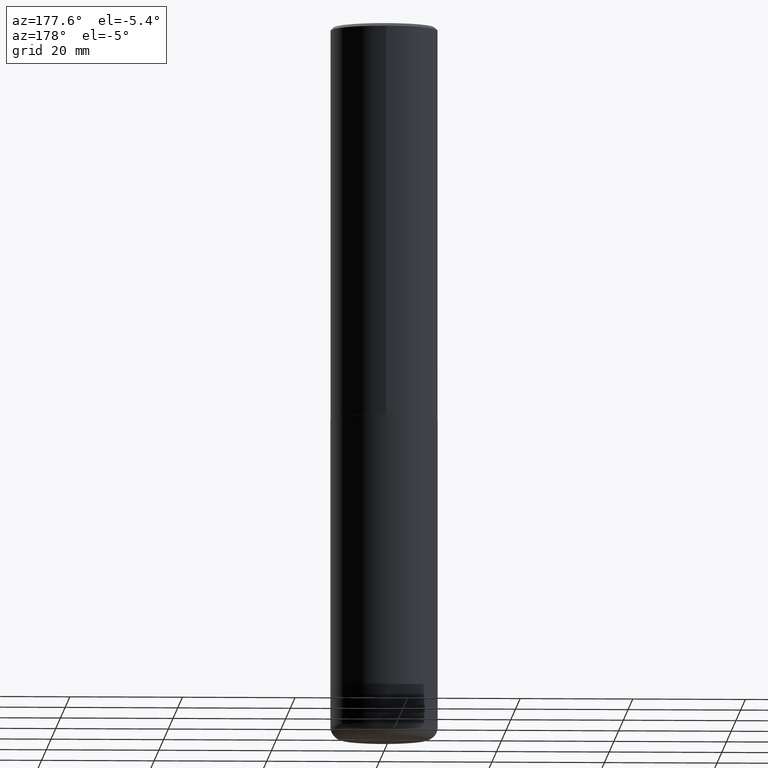
[diagram: clean part render]
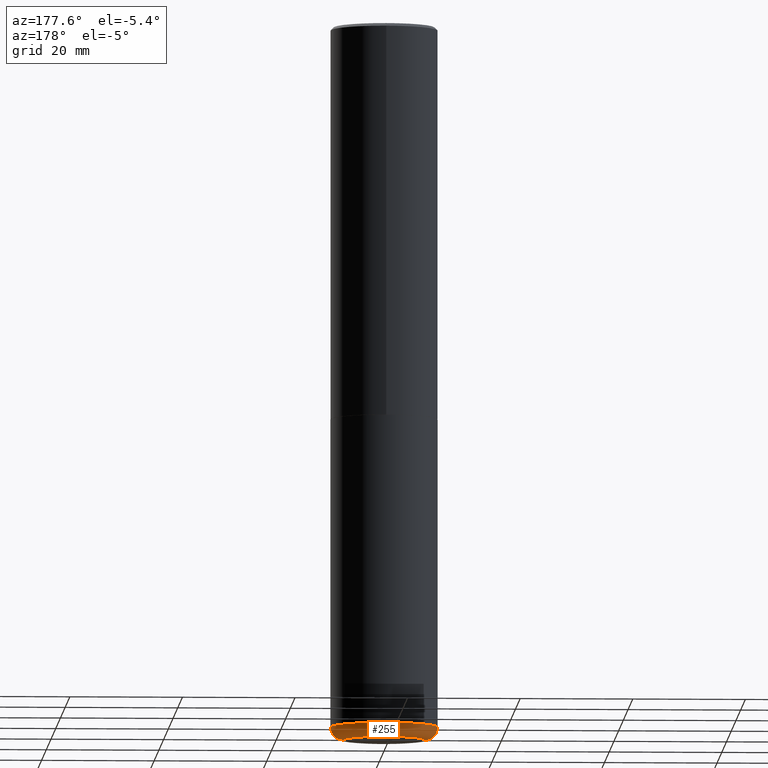
[diagram: same view with one face highlighted and labeled with its STEP entity id]
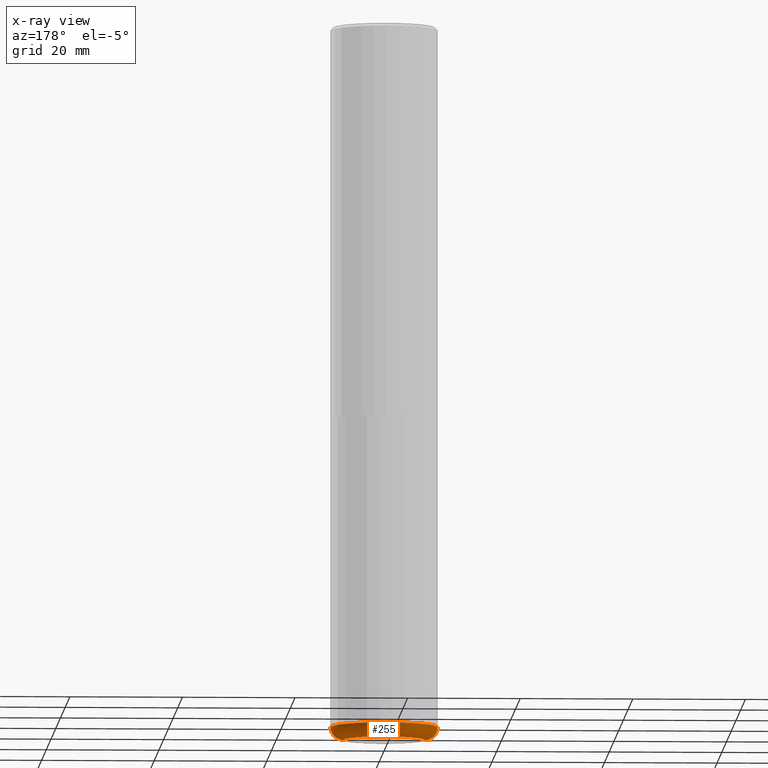
[diagram: x-ray of the same camera — body ghosted, the highlighted face saturated]
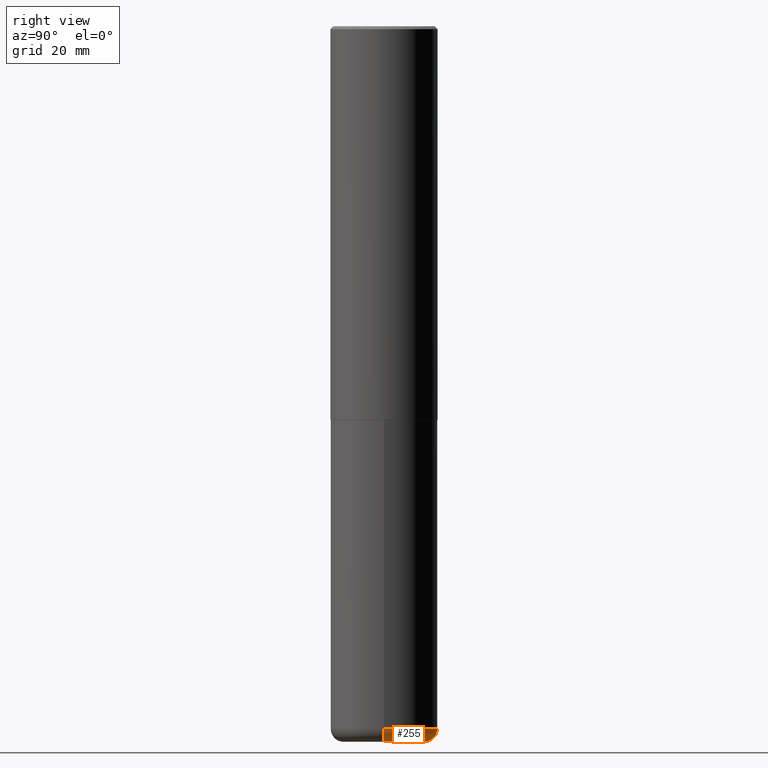
[diagram: same view with one face highlighted and labeled with its STEP entity id]
A machine part, auxiliary view. The second image highlights one B-rep face of the part: STEP entity #255.
The next image is the same camera in x-ray: the body ghosted, the highlighted face saturated — about 0% of this face is hidden behind the body in this view.
A second angle (right view) of the same face is appended — the face is thin or edge-on in the first view.
In plain terms, the highlighted toroidal blend (fillet) surface has major radius 7.239 mm and minor (blend) radius 2.286 mm.
Its self-contained STEP definition (entity closure, byte-faithful):
#18 = VERTEX_POINT ( 'NONE', #290 ) ;
#19 = CIRCLE ( 'NONE', #256, 0.08999999999999992728 ) ;
#27 = DIRECTION ( 'NONE',  ( 1.000000000000000000, -6.982962677686266711E-15, 0.000000000000000000 ) ) ;
#76 = EDGE_CURVE ( 'NONE', #411, #310, #19, .T. ) ;
#88 = DIRECTION ( 'NONE',  ( 1.000000000000000000, -6.982962677686269077E-15, 4.883557194083113462E-29 ) ) ;
#99 = EDGE_CURVE ( 'NONE', #310, #337, #109, .T. ) ;
#109 = CIRCLE ( 'NONE', #394, 0.3749999999999999445 ) ;
#121 = CIRCLE ( 'NONE', #232, 0.2850000000000000311 ) ;
#165 = CARTESIAN_POINT ( 'NONE',  ( -0.2850000000000000311, -1.511812657680356008E-14, -4.910000000000000142 ) ) ;
#167 = FACE_OUTER_BOUND ( 'NONE', #295, .T. ) ;
#170 = DIRECTION ( 'NONE',  ( 7.105427357601001859E-15, 1.000000000000000000, -3.491481338843145583E-15 ) ) ;
#213 = TOROIDAL_SURFACE ( 'NONE', #223, 0.2850000000000000311, 0.08999999999999989952 ) ;
#221 = CARTESIAN_POINT ( 'NONE',  ( 0.3749999999999999445, -1.976178437785219664E-14, -4.910000000000000142 ) ) ;
#223 = AXIS2_PLACEMENT_3D ( 'NONE', #296, #291, #88 ) ;
#224 = CARTESIAN_POINT ( 'NONE',  ( 0.2850000000000000311, -1.944755105735631653E-14, -5.000000000000000000 ) ) ;
#228 = DIRECTION ( 'NONE',  ( -2.445468806185136597E-29, 3.491481338843145583E-15, 1.000000000000000000 ) ) ;
#232 = AXIS2_PLACEMENT_3D ( 'NONE', #353, #379, #27 ) ;
#253 = CARTESIAN_POINT ( 'NONE',  ( 0.2850000000000000311, -1.913331773686043011E-14, -4.910000000000000142 ) ) ;
#255 = ADVANCED_FACE ( 'NONE', ( #167 ), #213, .T. ) ;
#256 = AXIS2_PLACEMENT_3D ( 'NONE', #253, #375, #347 ) ;
#273 = EDGE_CURVE ( 'NONE', #18, #337, #407, .T. ) ;
#290 = CARTESIAN_POINT ( 'NONE',  ( -0.2850000000000000311, -1.495549900595945556E-14, -5.000000000000000000 ) ) ;
#291 = DIRECTION ( 'NONE',  ( -2.445468806185136597E-29, 3.491481338843145583E-15, 1.000000000000000000 ) ) ;
#295 = EDGE_LOOP ( 'NONE', ( #400, #409, #368, #336 ) ) ;
#296 = CARTESIAN_POINT ( 'NONE',  ( 1.200725183836902132E-28, -1.714317337371984662E-14, -4.910000000000000142 ) ) ;
#301 = DIRECTION ( 'NONE',  ( 1.000000000000000000, -6.982962677686269077E-15, 0.000000000000000000 ) ) ;
#310 = VERTEX_POINT ( 'NONE', #221 ) ;
#319 = CARTESIAN_POINT ( 'NONE',  ( -0.3749999999999999445, -1.447863811461947092E-14, -4.910000000000000142 ) ) ;
#320 = CARTESIAN_POINT ( 'NONE',  ( 1.200725183836902132E-28, -1.714317337371984662E-14, -4.910000000000000142 ) ) ;
#336 = ORIENTED_EDGE ( 'NONE', *, *, #76, .F. ) ;
#337 = VERTEX_POINT ( 'NONE', #319 ) ;
#347 = DIRECTION ( 'NONE',  ( 1.000000000000000000, -6.982962677686273810E-15, 0.000000000000000000 ) ) ;
#353 = CARTESIAN_POINT ( 'NONE',  ( 1.222734403092568523E-28, -1.745740669421572989E-14, -5.000000000000000000 ) ) ;
#368 = ORIENTED_EDGE ( 'NONE', *, *, #99, .F. ) ;
#371 = AXIS2_PLACEMENT_3D ( 'NONE', #165, #170, #382 ) ;
#375 = DIRECTION ( 'NONE',  ( -6.982962677686266711E-15, -1.000000000000000000, 3.491481338843145583E-15 ) ) ;
#379 = DIRECTION ( 'NONE',  ( -2.445468806185136597E-29, 3.491481338843145583E-15, 1.000000000000000000 ) ) ;
#382 = DIRECTION ( 'NONE',  ( -1.000000000000000000, 7.105427357600996337E-15, 0.000000000000000000 ) ) ;
#387 = EDGE_CURVE ( 'NONE', #411, #18, #121, .T. ) ;
#394 = AXIS2_PLACEMENT_3D ( 'NONE', #320, #228, #301 ) ;
#400 = ORIENTED_EDGE ( 'NONE', *, *, #387, .T. ) ;
#407 = CIRCLE ( 'NONE', #371, 0.08999999999999992728 ) ;
#409 = ORIENTED_EDGE ( 'NONE', *, *, #273, .T. ) ;
#411 = VERTEX_POINT ( 'NONE', #224 ) ;